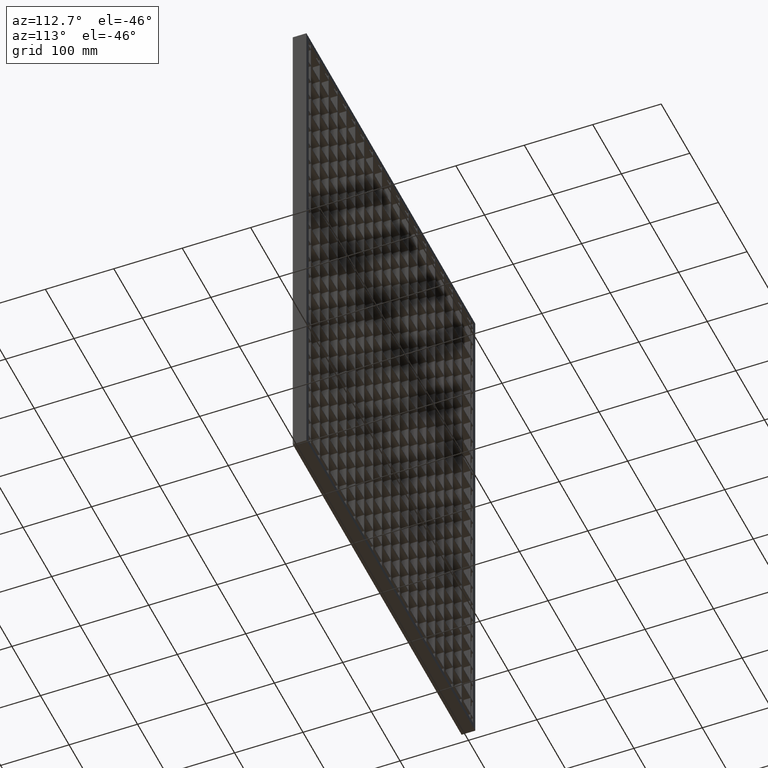
[diagram: clean part render]
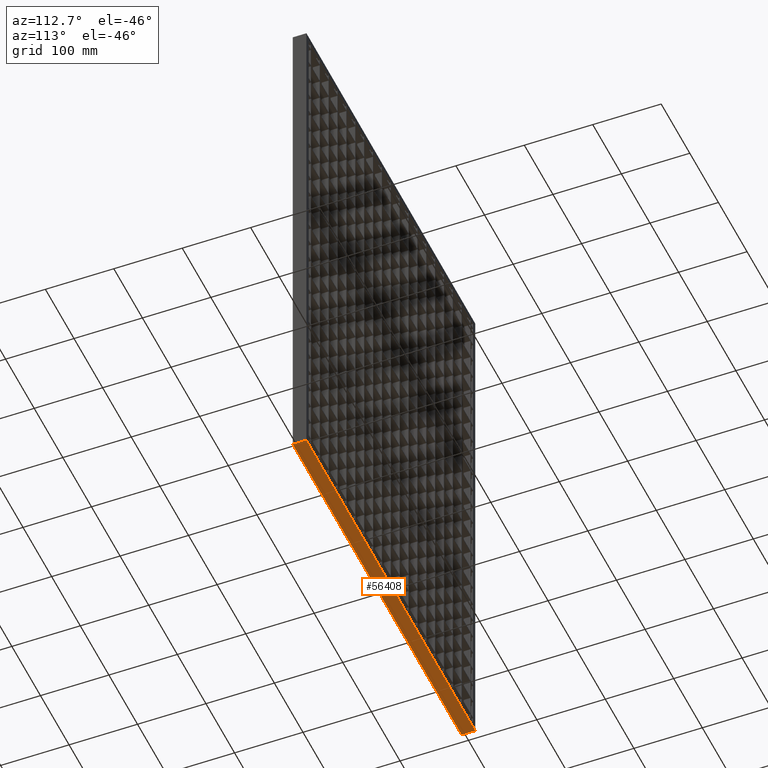
[diagram: same view with one face highlighted and labeled with its STEP entity id]
A machine part, auxiliary view. The second image highlights one B-rep face of the part: STEP entity #56408.
In plain terms, the highlighted planar face has unit normal (-0, 0, 1).
Its self-contained STEP definition (entity closure, byte-faithful):
#1078 = VERTEX_POINT ( 'NONE', #28278 ) ;
#1092 = LINE ( 'NONE', #72021, #51398 ) ;
#1945 = LINE ( 'NONE', #61284, #35757 ) ;
#3127 = AXIS2_PLACEMENT_3D ( 'NONE', #48900, #60028, #71718 ) ;
#4715 = LINE ( 'NONE', #33012, #18673 ) ;
#18096 = ORIENTED_EDGE ( 'NONE', *, *, #34651, .F. ) ;
#18115 = EDGE_CURVE ( 'NONE', #1078, #49553, #4715, .T. ) ;
#18673 = VECTOR ( 'NONE', #49989, 1000.000000000000000 ) ;
#19935 = ORIENTED_EDGE ( 'NONE', *, *, #47405, .F. ) ;
#20639 = FACE_OUTER_BOUND ( 'NONE', #45945, .T. ) ;
#20990 = PLANE ( 'NONE',  #3127 ) ;
#28278 = CARTESIAN_POINT ( 'NONE',  ( -3.061616997868381900E-015, 10.00000000000000000, -790.0000000000000000 ) ) ;
#28779 = CARTESIAN_POINT ( 'NONE',  ( 590.0000000000000000, -10.00000000000000000, -790.0000000000000000 ) ) ;
#33012 = CARTESIAN_POINT ( 'NONE',  ( -3.061616997868381900E-015, 10.00000000000000000, -790.0000000000000000 ) ) ;
#33194 = DIRECTION ( 'NONE',  ( 1.000000000000000000, 0.0000000000000000000, 0.0000000000000000000 ) ) ;
#34651 = EDGE_CURVE ( 'NONE', #70376, #49553, #1945, .T. ) ;
#35757 = VECTOR ( 'NONE', #55238, 1000.000000000000000 ) ;
#41631 = CARTESIAN_POINT ( 'NONE',  ( 3.061616997868383000E-015, -10.00000000000000000, -790.0000000000000000 ) ) ;
#42546 = ORIENTED_EDGE ( 'NONE', *, *, #18115, .T. ) ;
#45945 = EDGE_LOOP ( 'NONE', ( #18096, #57026, #19935, #42546 ) ) ;
#47405 = EDGE_CURVE ( 'NONE', #1078, #66865, #63110, .T. ) ;
#48900 = CARTESIAN_POINT ( 'NONE',  ( -3.061616997868386200E-015, 10.00000000000001400, -790.0000000000000000 ) ) ;
#49553 = VERTEX_POINT ( 'NONE', #67991 ) ;
#49989 = DIRECTION ( 'NONE',  ( 1.000000000000000000, 0.0000000000000000000, 0.0000000000000000000 ) ) ;
#50558 = EDGE_CURVE ( 'NONE', #66865, #70376, #1092, .T. ) ;
#51398 = VECTOR ( 'NONE', #33194, 1000.000000000000000 ) ;
#55238 = DIRECTION ( 'NONE',  ( 3.061616997868381700E-016, 1.000000000000000000, -3.061616997868382200E-016 ) ) ;
#56340 = DIRECTION ( 'NONE',  ( 3.061616997868382200E-016, -1.000000000000000000, 3.061616997868382200E-016 ) ) ;
#56408 = ADVANCED_FACE ( 'NONE', ( #20639 ), #20990, .F. ) ;
#57026 = ORIENTED_EDGE ( 'NONE', *, *, #50558, .F. ) ;
#58792 = VECTOR ( 'NONE', #56340, 1000.000000000000000 ) ;
#60028 = DIRECTION ( 'NONE',  ( -0.0000000000000000000, 3.061616997868382200E-016, 1.000000000000000000 ) ) ;
#61284 = CARTESIAN_POINT ( 'NONE',  ( 590.0000000000000000, 9.999999999999833000, -790.0000000000000000 ) ) ;
#63110 = LINE ( 'NONE', #66527, #58792 ) ;
#66527 = CARTESIAN_POINT ( 'NONE',  ( -3.061616997868386200E-015, 10.00000000000001400, -790.0000000000000000 ) ) ;
#66865 = VERTEX_POINT ( 'NONE', #41631 ) ;
#67991 = CARTESIAN_POINT ( 'NONE',  ( 590.0000000000001100, 10.00000000000000000, -790.0000000000000000 ) ) ;
#70376 = VERTEX_POINT ( 'NONE', #28779 ) ;
#71718 = DIRECTION ( 'NONE',  ( 0.0000000000000000000, -1.000000000000000000, 3.061616997868382200E-016 ) ) ;
#72021 = CARTESIAN_POINT ( 'NONE',  ( 3.061616997868383000E-015, -10.00000000000000000, -790.0000000000000000 ) ) ;